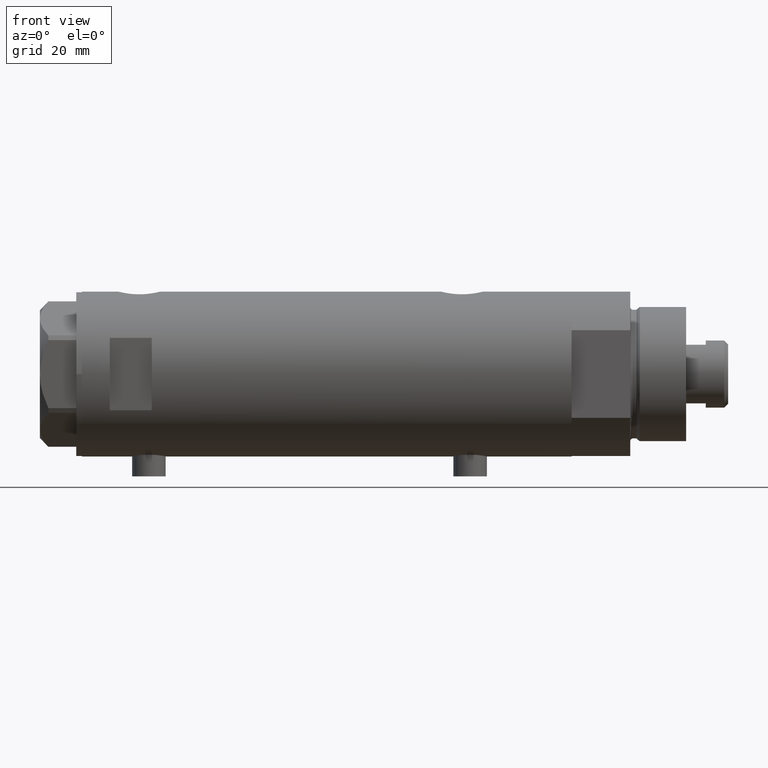
[diagram: clean part render]
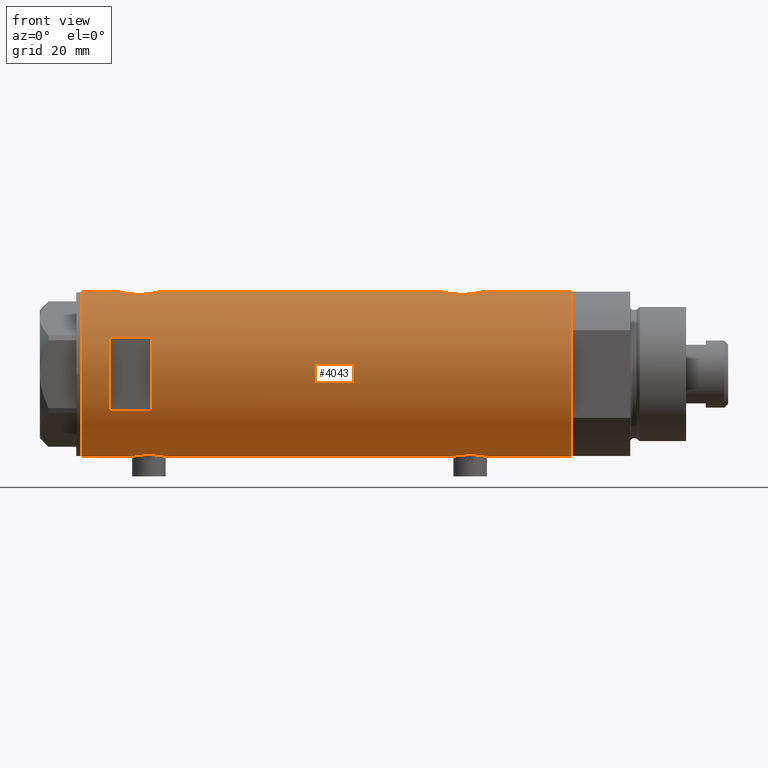
[diagram: same view with one face highlighted and labeled with its STEP entity id]
A machine part, front view. The second image highlights one B-rep face of the part: STEP entity #4043.
In plain terms, the highlighted cylindrical surface (partial cylindrical patch) has radius 29.5 mm, axis along (-1, -0, 0).
Its self-contained STEP definition (entity closure, byte-faithful):
#19 = CIRCLE ( 'NONE', #3126, 29.50000000000000355 ) ;
#26 = AXIS2_PLACEMENT_3D ( 'NONE', #1245, #1174, #4306 ) ;
#30 = CARTESIAN_POINT ( 'NONE',  ( 0.000000000000000000, 0.000000000000000000, 87.59999999999999432 ) ) ;
#32 = CARTESIAN_POINT ( 'NONE',  ( 28.86290657878784671, -6.099358034152101204, 62.72869329957394058 ) ) ;
#53 = EDGE_CURVE ( 'NONE', #2247, #709, #563, .T. ) ;
#55 = CARTESIAN_POINT ( 'NONE',  ( 29.33743940633121028, -3.100990836771690073, -41.56672487560935281 ) ) ;
#61 = CARTESIAN_POINT ( 'NONE',  ( -29.50000000000000355, -1.989795151372050188E-15, -45.04999999999999005 ) ) ;
#68 = ORIENTED_EDGE ( 'NONE', *, *, #3432, .F. ) ;
#74 = CARTESIAN_POINT ( 'NONE',  ( 29.08168479815707386, -4.954011967599708299, 61.46372631484727833 ) ) ;
#81 = ORIENTED_EDGE ( 'NONE', *, *, #1940, .F. ) ;
#82 = CARTESIAN_POINT ( 'NONE',  ( 28.98816846638396072, -5.474212100855873508, -43.26747840116693311 ) ) ;
#102 = CARTESIAN_POINT ( 'NONE',  ( 29.49999999999999289, -0.4976091310423251812, 59.59999999999998721 ) ) ;
#124 = EDGE_CURVE ( 'NONE', #1846, #3932, #3699, .T. ) ;
#126 = CARTESIAN_POINT ( 'NONE',  ( 28.59337635119608123, -7.258007499531540674, 69.05216225651359707 ) ) ;
#169 = CARTESIAN_POINT ( 'NONE',  ( -29.08006251441182854, -4.961575945539730803, -47.49381497947474884 ) ) ;
#171 = VECTOR ( 'NONE', #1683, 1000.000000000000000 ) ;
#189 = CARTESIAN_POINT ( 'NONE',  ( -29.21108587560690495, -4.128853169727750405, -56.00967276909590709 ) ) ;
#196 = CARTESIAN_POINT ( 'NONE',  ( 29.40305664607911140, -2.432276947006147605, -55.51147801006586491 ) ) ;
#197 = ORIENTED_EDGE ( 'NONE', *, *, #3224, .F. ) ;
#207 = CARTESIAN_POINT ( 'NONE',  ( -29.38738983525001558, -2.582042051636497693, -56.99535171595380945 ) ) ;
#214 = CARTESIAN_POINT ( 'NONE',  ( 0.000000000000000000, 0.000000000000000000, 62.60000000000011511 ) ) ;
#223 = CARTESIAN_POINT ( 'NONE',  ( -29.45566469296798928, -1.628675872921093726, 69.63756032628675996 ) ) ;
#229 = CARTESIAN_POINT ( 'NONE',  ( -28.85437274499025406, -6.138402965889069307, -52.52756596705081904 ) ) ;
#246 = CARTESIAN_POINT ( 'NONE',  ( -28.89828397447510255, -5.929977241120604425, 65.61611952241995027 ) ) ;
#266 = CARTESIAN_POINT ( 'NONE',  ( -28.83260549167351527, -6.239494599049532297, 63.18384915698199933 ) ) ;
#289 = CARTESIAN_POINT ( 'NONE',  ( -29.05872136210575363, -5.084685578900223213, 67.24009991908759787 ) ) ;
#315 = CARTESIAN_POINT ( 'NONE',  ( -29.49152014567325253, -0.8152473631539829402, 57.38964705166666391 ) ) ;
#335 = CARTESIAN_POINT ( 'NONE',  ( 28.53399451186755442, -7.487442594623181513, -47.90102514498886421 ) ) ;
#374 = CARTESIAN_POINT ( 'NONE',  ( 29.50000000000000355, -8.867894669064240341E-21, 74.59999999999999432 ) ) ;
#417 = VERTEX_POINT ( 'NONE', #740 ) ;
#421 = CARTESIAN_POINT ( 'NONE',  ( 28.77541267587657003, -6.504036106227640168, 70.86628550135910132 ) ) ;
#428 = CARTESIAN_POINT ( 'NONE',  ( 29.26065241255352589, -3.756597382275444819, -41.90395565180811133 ) ) ;
#445 = CARTESIAN_POINT ( 'NONE',  ( 28.59279484545187344, -7.260293545345771982, 65.15593442015531878 ) ) ;
#455 = CARTESIAN_POINT ( 'NONE',  ( 29.26166309680877475, -3.765013078516705303, -54.90510232053061657 ) ) ;
#474 = CARTESIAN_POINT ( 'NONE',  ( 28.72151714661535848, -6.735173278284142917, 70.43640470570873902 ) ) ;
#483 = CARTESIAN_POINT ( 'NONE',  ( 29.31438578683259522, -3.335040812377227937, -55.13547276843772238 ) ) ;
#513 = CARTESIAN_POINT ( 'NONE',  ( -29.12379578281189296, -4.705261494361431041, -55.43387957720276660 ) ) ;
#537 = CARTESIAN_POINT ( 'NONE',  ( -29.25361239466581154, -3.820294933898107814, -46.33642010285959145 ) ) ;
#563 = LINE ( 'NONE', #2328, #2675 ) ;
#586 = CARTESIAN_POINT ( 'NONE',  ( -28.91427970886711307, -5.849862889315922132, -53.50993133128852008 ) ) ;
#601 = CARTESIAN_POINT ( 'NONE',  ( -29.45797511864983420, -1.625450914296658667, 57.55094872469953060 ) ) ;
#616 = ORIENTED_EDGE ( 'NONE', *, *, #4003, .F. ) ;
#623 = ORIENTED_EDGE ( 'NONE', *, *, #917, .F. ) ;
#626 = CARTESIAN_POINT ( 'NONE',  ( -28.96147498926091046, -5.613273026676365518, 60.82107301657418930 ) ) ;
#645 = CARTESIAN_POINT ( 'NONE',  ( -29.25427426731712544, -3.815048240656437439, 58.63259231846663511 ) ) ;
#663 = CARTESIAN_POINT ( 'NONE',  ( -29.41741605749265887, -2.213861184585002917, 69.44831174451371680 ) ) ;
#688 = CARTESIAN_POINT ( 'NONE',  ( 28.62986945670068550, -7.114680680403729696, -45.97606223993307850 ) ) ;
#709 = VERTEX_POINT ( 'NONE', #4451 ) ;
#720 = CARTESIAN_POINT ( 'NONE',  ( -29.50000000000000355, -1.989795151372050188E-15, -45.04999999999999005 ) ) ;
#733 = CARTESIAN_POINT ( 'NONE',  ( 28.86290657878785737, -6.099358034152089658, -52.77130670042607363 ) ) ;
#740 = CARTESIAN_POINT ( 'NONE',  ( -29.50000000000000355, 3.612708057484692393E-15, 87.59999999999999432 ) ) ;
#752 = CARTESIAN_POINT ( 'NONE',  ( 28.53399451186755087, -7.487442594623177961, 67.59897485501115000 ) ) ;
#763 = CARTESIAN_POINT ( 'NONE',  ( 28.55627543367308618, -7.402134446380870259, -47.16780349681763340 ) ) ;
#764 = VERTEX_POINT ( 'NONE', #2559 ) ;
#774 = ORIENTED_EDGE ( 'NONE', *, *, #4301, .F. ) ;
#781 = CARTESIAN_POINT ( 'NONE',  ( 29.26065241255351523, -3.756597382275435493, 73.59604434819190999 ) ) ;
#784 = VERTEX_POINT ( 'NONE', #2585 ) ;
#801 = CARTESIAN_POINT ( 'NONE',  ( 28.54347630091234933, -7.451827970232792531, 66.11943218216043761 ) ) ;
#825 = CARTESIAN_POINT ( 'NONE',  ( 29.23250901027695647, -3.968959760999262176, 73.46846017287660402 ) ) ;
#870 = CARTESIAN_POINT ( 'NONE',  ( -29.50000000000000355, -3.685106651658548747E-16, 69.84999999999999432 ) ) ;
#871 = CARTESIAN_POINT ( 'NONE',  ( -29.25427426731712188, -3.815048240656438772, -56.26740768153337058 ) ) ;
#888 = CARTESIAN_POINT ( 'NONE',  ( -28.83909499632370199, -6.209928350489668958, -50.48382218917042508 ) ) ;
#908 = CARTESIAN_POINT ( 'NONE',  ( -29.07948744859177381, -4.968520850090770935, -55.11336367378893186 ) ) ;
#914 = ORIENTED_EDGE ( 'NONE', *, *, #2947, .F. ) ;
#917 = EDGE_CURVE ( 'NONE', #3679, #417, #3800, .T. ) ;
#932 = CARTESIAN_POINT ( 'NONE',  ( -29.05872136210574297, -5.084685578900233871, -47.65990008091242203 ) ) ;
#944 = ORIENTED_EDGE ( 'NONE', *, *, #3361, .F. ) ;
#947 = CARTESIAN_POINT ( 'NONE',  ( -29.50000000000000355, 3.612706708236066082E-15, 57.34999999999998721 ) ) ;
#952 = CARTESIAN_POINT ( 'NONE',  ( -28.83260549167351527, -6.239494599049535850, -51.71615084301800636 ) ) ;
#964 = CARTESIAN_POINT ( 'NONE',  ( -29.21016169868140366, -4.135295259288787051, 68.30390088086507205 ) ) ;
#1028 = CARTESIAN_POINT ( 'NONE',  ( -28.83909499632370199, -6.209928350489659188, 64.41617781082960903 ) ) ;
#1035 = CARTESIAN_POINT ( 'NONE',  ( 29.50000000000000355, -8.867894669064240341E-21, -40.89999999999999858 ) ) ;
#1045 = DIRECTION ( 'NONE',  ( -0.000000000000000000, -0.000000000000000000, -1.000000000000000000 ) ) ;
#1052 = CARTESIAN_POINT ( 'NONE',  ( 28.59279484545186989, -7.260293545345763100, -50.34406557984473096 ) ) ;
#1067 = CARTESIAN_POINT ( 'NONE',  ( 28.98816846638396427, -5.474212100855878838, 72.23252159883305978 ) ) ;
#1090 = EDGE_CURVE ( 'NONE', #3493, #764, #2997, .T. ) ;
#1094 = CARTESIAN_POINT ( 'NONE',  ( 29.23250901027695647, -3.968959760999266617, -42.03153982712338177 ) ) ;
#1111 = CARTESIAN_POINT ( 'NONE',  ( 28.72051071455672044, -6.739402597165490505, 63.77281026296248712 ) ) ;
#1115 = DIRECTION ( 'NONE',  ( 1.000000000000000000, 0.000000000000000000, 0.000000000000000000 ) ) ;
#1118 = CARTESIAN_POINT ( 'NONE',  ( 28.62983003203746080, -7.114781472982439681, -50.82273058853737524 ) ) ;
#1133 = EDGE_CURVE ( 'NONE', #417, #764, #1554, .T. ) ;
#1153 = CARTESIAN_POINT ( 'NONE',  ( 29.50000000000001066, -0.4905639552620957300, 74.59999999999998010 ) ) ;
#1174 = DIRECTION ( 'NONE',  ( 0.000000000000000000, 0.000000000000000000, 1.000000000000000000 ) ) ;
#1245 = CARTESIAN_POINT ( 'NONE',  ( 0.000000000000000000, 0.000000000000000000, -87.59999999999999432 ) ) ;
#1261 = VECTOR ( 'NONE', #3569, 1000.000000000000000 ) ;
#1271 = CARTESIAN_POINT ( 'NONE',  ( -28.89828397447510255, -5.929977241120610643, -49.28388047758001989 ) ) ;
#1280 = DIRECTION ( 'NONE',  ( -0.000000000000000000, -4.625929269271487689E-15, 1.000000000000000000 ) ) ;
#1296 = CARTESIAN_POINT ( 'NONE',  ( 29.50000000000000355, 0.000000000000000000, -87.59999999999999432 ) ) ;
#1304 = CARTESIAN_POINT ( 'NONE',  ( -28.99772237063718094, -5.425436006677728074, 66.72962674552641715 ) ) ;
#1310 = CARTESIAN_POINT ( 'NONE',  ( -29.49128673965872238, -0.8227026017531590130, -45.09075558927904126 ) ) ;
#1315 = DIRECTION ( 'NONE',  ( 0.000000000000000000, 0.000000000000000000, 1.000000000000000000 ) ) ;
#1334 = B_SPLINE_CURVE_WITH_KNOTS ( 'NONE', 3,
 ( #374, #1153, #3873, #2149, #1454, #1812, #3132, #781, #825, #2532, #2818, #1067, #3225, #3857, #2514, #421, #474, #3892, #126, #1796, #3462, #752, #4152, #4193, #801, #445, #1508, #1111, #3510, #32, #3169, #1837, #3533, #2173, #74, #4220, #1436, #3200, #2449, #3810, #2867, #2795, #102, #4240 ),
 .UNSPECIFIED., .F., .F.,
 ( 4, 2, 2, 2, 2, 2, 2, 2, 2, 2, 2, 2, 2, 2, 2, 2, 2, 2, 2, 2, 2, 4 ),
 ( 0.02354540741801906811, 0.02501659793198017859, 0.02648778844594128906, 0.02722338370292184256, 0.02795897895990239954, 0.02943016947386351001, 0.03016576473084408433, 0.03090135998782465171, 0.03237255050178579341, 0.03384374101574693511, 0.03457933627272750943, 0.03531493152970807681, 0.03678612204366921851, 0.03825731255763036021, 0.03972850307159149497, 0.04046409832857204847, 0.04119969358555261585, 0.04193528884253318323, 0.04267088409951375061, 0.04414207461347488537, 0.04561326512743602707, 0.04708445564139716183 ),
 .UNSPECIFIED. ) ;
#1351 = CARTESIAN_POINT ( 'NONE',  ( -29.46613381094001127, -1.427468570127964798, 69.68827540540398502 ) ) ;
#1401 = CARTESIAN_POINT ( 'NONE',  ( 0.000000000000000000, 0.000000000000000000, -87.59999999999999432 ) ) ;
#1436 = CARTESIAN_POINT ( 'NONE',  ( 29.17410189149616428, -4.377709617224024186, 61.00524172523977740 ) ) ;
#1439 = DIRECTION ( 'NONE',  ( -0.000000000000000000, 0.000000000000000000, -1.000000000000000000 ) ) ;
#1441 = CARTESIAN_POINT ( 'NONE',  ( 29.08168479815708451, -4.954011967599717181, -54.03627368515270035 ) ) ;
#1454 = CARTESIAN_POINT ( 'NONE',  ( 29.40378957563274298, -2.423455993307769951, 74.21449460115982788 ) ) ;
#1468 = VERTEX_POINT ( 'NONE', #1735 ) ;
#1487 = DIRECTION ( 'NONE',  ( 0.000000000000000000, 0.000000000000000000, 1.000000000000000000 ) ) ;
#1494 = LINE ( 'NONE', #1823, #4150 ) ;
#1508 = CARTESIAN_POINT ( 'NONE',  ( 28.62983003203746435, -7.114781472982441457, 64.67726941146263187 ) ) ;
#1523 = DIRECTION ( 'NONE',  ( 0.000000000000000000, 0.000000000000000000, 1.000000000000000000 ) ) ;
#1554 = CIRCLE ( 'NONE', #4413, 29.50000000000000355 ) ;
#1575 = CARTESIAN_POINT ( 'NONE',  ( -29.12311479234994849, -4.702282052053738504, -47.17776471113516124 ) ) ;
#1610 = CARTESIAN_POINT ( 'NONE',  ( -29.31475612970062627, -3.305202271067059883, -56.60847868843855224 ) ) ;
#1627 = CARTESIAN_POINT ( 'NONE',  ( -28.83028160285196151, -6.250189016175732526, 64.00967003214678641 ) ) ;
#1638 = CARTESIAN_POINT ( 'NONE',  ( -29.37136442049237317, -2.777615426151012201, -45.68634887377884013 ) ) ;
#1683 = DIRECTION ( 'NONE',  ( 0.000000000000000000, 0.000000000000000000, 1.000000000000000000 ) ) ;
#1691 = CARTESIAN_POINT ( 'NONE',  ( -29.25361239466581154, -3.820294933898098488, 68.56357989714038581 ) ) ;
#1707 = EDGE_LOOP ( 'NONE', ( #944, #4392, #914, #616 ) ) ;
#1719 = CARTESIAN_POINT ( 'NONE',  ( -29.21108587560690495, -4.128853169727751293, 58.89032723090409149 ) ) ;
#1735 = CARTESIAN_POINT ( 'NONE',  ( 12.96148139681573319, -26.49999999999998934, 62.59999999999998721 ) ) ;
#1737 = CARTESIAN_POINT ( 'NONE',  ( 28.77541267587658780, -6.504036106227640168, -44.63371449864085605 ) ) ;
#1743 = CARTESIAN_POINT ( 'NONE',  ( -29.45566469296797507, -1.628675872921105938, -45.26243967371323862 ) ) ;
#1745 = CARTESIAN_POINT ( 'NONE',  ( 29.50000000000000355, 0.000000000000000000, -87.59999999999999432 ) ) ;
#1750 = ORIENTED_EDGE ( 'NONE', *, *, #4210, .F. ) ;
#1763 = DIRECTION ( 'NONE',  ( 0.000000000000000000, 0.000000000000000000, 1.000000000000000000 ) ) ;
#1783 = CARTESIAN_POINT ( 'NONE',  ( 28.54347630091233867, -7.451827970232786313, -49.38056781783959792 ) ) ;
#1796 = CARTESIAN_POINT ( 'NONE',  ( 28.55627543367308618, -7.402134446380869370, 68.33219650318235949 ) ) ;
#1801 = CARTESIAN_POINT ( 'NONE',  ( 29.43922820968270671, -1.954457150219038208, -41.14210652754225350 ) ) ;
#1812 = CARTESIAN_POINT ( 'NONE',  ( 29.33743940633120673, -3.100990836771692294, 73.93327512439066140 ) ) ;
#1819 = EDGE_CURVE ( 'NONE', #2840, #2095, #4394, .T. ) ;
#1823 = CARTESIAN_POINT ( 'NONE',  ( 12.96148139681573319, -26.49999999999999645, -87.59999999999999432 ) ) ;
#1837 = CARTESIAN_POINT ( 'NONE',  ( 28.95592074821773210, -5.641779806288288235, 62.15226504197970314 ) ) ;
#1846 = VERTEX_POINT ( 'NONE', #2378 ) ;
#1882 = CARTESIAN_POINT ( 'NONE',  ( -12.96148139681573319, -26.49999999999998934, 62.59999999999998721 ) ) ;
#1889 = CARTESIAN_POINT ( 'NONE',  ( 29.50000000000000355, -1.363453657738827866E-15, -55.89999999999999858 ) ) ;
#1898 = CARTESIAN_POINT ( 'NONE',  ( -28.84137202824161861, -6.198846007008993908, -52.12388261123874145 ) ) ;
#1899 = ORIENTED_EDGE ( 'NONE', *, *, #4267, .T. ) ;
#1940 = EDGE_CURVE ( 'NONE', #3493, #3846, #1334, .T. ) ;
#1961 = CARTESIAN_POINT ( 'NONE',  ( -29.33479068874800433, -3.136645782783870295, -45.87844745385529421 ) ) ;
#1977 = CARTESIAN_POINT ( 'NONE',  ( -29.50000000000000000, -0.4141077724969871032, 69.85000000000000853 ) ) ;
#2017 = CARTESIAN_POINT ( 'NONE',  ( -29.07948744859177026, -4.968520850090769159, 59.78663632621105961 ) ) ;
#2063 = CARTESIAN_POINT ( 'NONE',  ( 28.59337635119608123, -7.258007499531542450, -46.44783774348638872 ) ) ;
#2074 = DIRECTION ( 'NONE',  ( 1.000000000000000000, 0.000000000000000000, 0.000000000000000000 ) ) ;
#2083 = CARTESIAN_POINT ( 'NONE',  ( -29.50000000000000355, 3.612708057484692393E-15, -87.59999999999999432 ) ) ;
#2095 = VERTEX_POINT ( 'NONE', #1882 ) ;
#2105 = CARTESIAN_POINT ( 'NONE',  ( 28.89374847711160399, -5.952001739005051917, -52.96983981079635129 ) ) ;
#2130 = LINE ( 'NONE', #3498, #3649 ) ;
#2149 = CARTESIAN_POINT ( 'NONE',  ( 29.43922820968270671, -1.954457150219034434, 74.35789347245773229 ) ) ;
#2169 = CARTESIAN_POINT ( 'NONE',  ( -29.50000000000000355, 3.612708057484692393E-15, -87.59999999999999432 ) ) ;
#2173 = CARTESIAN_POINT ( 'NONE',  ( 29.05028789344172324, -5.134328181356783816, 61.62753542393731010 ) ) ;
#2232 = CARTESIAN_POINT ( 'NONE',  ( 29.43916859571211120, -1.954329820671499407, -55.65764479242087504 ) ) ;
#2233 = VERTEX_POINT ( 'NONE', #4187 ) ;
#2242 = DIRECTION ( 'NONE',  ( 0.000000000000000000, 0.000000000000000000, 1.000000000000000000 ) ) ;
#2247 = VERTEX_POINT ( 'NONE', #1745 ) ;
#2272 = VECTOR ( 'NONE', #1045, 1000.000000000000000 ) ;
#2286 = CARTESIAN_POINT ( 'NONE',  ( -28.89999183068148625, -5.919812056825922042, -53.31500238835418060 ) ) ;
#2288 = AXIS2_PLACEMENT_3D ( 'NONE', #1401, #3163, #4275 ) ;
#2320 = CARTESIAN_POINT ( 'NONE',  ( -29.33479068874799722, -3.136645782783865410, 69.02155254614469015 ) ) ;
#2328 = CARTESIAN_POINT ( 'NONE',  ( 29.50000000000000355, 0.000000000000000000, -87.59999999999999432 ) ) ;
#2341 = CARTESIAN_POINT ( 'NONE',  ( -29.33428005013169226, -3.127775714777723426, 58.18506796127407199 ) ) ;
#2352 = CIRCLE ( 'NONE', #26, 29.50000000000000355 ) ;
#2378 = CARTESIAN_POINT ( 'NONE',  ( -29.50000000000000355, 3.612706708267620518E-15, -57.55000000000000426 ) ) ;
#2407 = CARTESIAN_POINT ( 'NONE',  ( -28.99856997507319534, -5.420860550814439627, 60.46276987854197671 ) ) ;
#2433 = CARTESIAN_POINT ( 'NONE',  ( 29.48775985681159284, -0.9798361908152568578, -40.94769556118675524 ) ) ;
#2449 = CARTESIAN_POINT ( 'NONE',  ( 29.31438578683260232, -3.335040812377226604, 60.36452723156224920 ) ) ;
#2454 = CARTESIAN_POINT ( 'NONE',  ( 29.14531914445117522, -4.579221598645967006, -42.44009767007190703 ) ) ;
#2473 = CARTESIAN_POINT ( 'NONE',  ( 29.05028789344173745, -5.134328181356786480, -53.87246457606267569 ) ) ;
#2514 = CARTESIAN_POINT ( 'NONE',  ( 28.86327882047615034, -6.097569254709694242, 71.47367090911446041 ) ) ;
#2532 = CARTESIAN_POINT ( 'NONE',  ( 29.14531914445117167, -4.579221598645962565, 73.05990232992806455 ) ) ;
#2559 = CARTESIAN_POINT ( 'NONE',  ( 29.50000000000000355, 0.000000000000000000, 87.59999999999999432 ) ) ;
#2585 = CARTESIAN_POINT ( 'NONE',  ( -29.50000000000000355, 3.612706708236066082E-15, 57.34999999999998721 ) ) ;
#2597 = CARTESIAN_POINT ( 'NONE',  ( -29.50000000000000711, -0.4084468586314279337, -57.55000000000000426 ) ) ;
#2614 = CARTESIAN_POINT ( 'NONE',  ( -29.49152014567325253, -0.8152473631539818300, -57.51035294833331335 ) ) ;
#2640 = CARTESIAN_POINT ( 'NONE',  ( -28.96072448608914485, -5.617106371651703789, -48.52917268339558632 ) ) ;
#2641 = VERTEX_POINT ( 'NONE', #1035 ) ;
#2648 = DIRECTION ( 'NONE',  ( 1.776356839400250267E-15, 1.000000000000000000, 4.704334850106595203E-15 ) ) ;
#2651 = CARTESIAN_POINT ( 'NONE',  ( -29.12379578281188586, -4.705261494361431041, 59.46612042279722488 ) ) ;
#2675 = VECTOR ( 'NONE', #2242, 1000.000000000000000 ) ;
#2689 = CARTESIAN_POINT ( 'NONE',  ( -28.89999183068147559, -5.919812056825914048, 61.58499761164581798 ) ) ;
#2711 = CARTESIAN_POINT ( 'NONE',  ( -29.50000000000000355, -3.685106651658548747E-16, 69.84999999999999432 ) ) ;
#2728 = CARTESIAN_POINT ( 'NONE',  ( -29.31475612970062983, -3.305202271067059439, 58.29152131156144634 ) ) ;
#2734 = CARTESIAN_POINT ( 'NONE',  ( -29.50000000000000711, -0.4141077724969866591, -45.04999999999999005 ) ) ;
#2753 = CARTESIAN_POINT ( 'NONE',  ( 28.86327882047615034, -6.097569254709688913, -44.02632909088551827 ) ) ;
#2768 = VECTOR ( 'NONE', #1523, 1000.000000000000000 ) ;
#2780 = CARTESIAN_POINT ( 'NONE',  ( 29.50000000000000355, -8.867894669064240341E-21, -40.89999999999999858 ) ) ;
#2795 = CARTESIAN_POINT ( 'NONE',  ( 29.48742104091791560, -0.9879539515379935910, 59.64904301646021167 ) ) ;
#2800 = CARTESIAN_POINT ( 'NONE',  ( 29.14351131874355261, -4.576283785862462317, -54.34705324848517449 ) ) ;
#2814 = ORIENTED_EDGE ( 'NONE', *, *, #1133, .F. ) ;
#2818 = CARTESIAN_POINT ( 'NONE',  ( 29.08294968506023181, -4.955368226349210481, 72.75096718198464885 ) ) ;
#2824 = CARTESIAN_POINT ( 'NONE',  ( 28.89374408016308848, -5.952042782108791563, -43.83015462974033483 ) ) ;
#2840 = VERTEX_POINT ( 'NONE', #3908 ) ;
#2867 = CARTESIAN_POINT ( 'NONE',  ( 29.43916859571210409, -1.954329820671502960, 59.84235520757910365 ) ) ;
#2884 = CARTESIAN_POINT ( 'NONE',  ( 29.50000000000000355, -8.867894669064240341E-21, 74.59999999999999432 ) ) ;
#2904 = VECTOR ( 'NONE', #1315, 1000.000000000000000 ) ;
#2932 = CARTESIAN_POINT ( 'NONE',  ( -28.99856997507319534, -5.420860550814444956, -54.43723012145802187 ) ) ;
#2940 = CARTESIAN_POINT ( 'NONE',  ( 29.50000000000000711, -0.4976091310423220726, -55.89999999999999858 ) ) ;
#2947 = EDGE_CURVE ( 'NONE', #2233, #2840, #19, .T. ) ;
#2970 = CARTESIAN_POINT ( 'NONE',  ( -28.87288655002252113, -6.050870399762851015, -49.68249459278194990 ) ) ;
#2990 = CARTESIAN_POINT ( 'NONE',  ( -29.37055817176825556, -2.766456155496577196, -56.90813607588912504 ) ) ;
#2997 = LINE ( 'NONE', #1296, #2904 ) ;
#2999 = ORIENTED_EDGE ( 'NONE', *, *, #3640, .T. ) ;
#3025 = B_SPLINE_CURVE_WITH_KNOTS ( 'NONE', 3,
 ( #947, #3733, #315, #601, #3073, #4383, #3366, #2341, #2728, #645, #1719, #2651, #2017, #2407, #626, #4364, #2689, #3345, #3026, #3751, #266, #4450, #1627, #1028, #4066, #246, #3384, #1304, #289, #4042, #4027, #3318, #964, #1691, #2320, #4429, #663, #3049, #223, #1351, #3689, #1977, #2711 ),
 .UNSPECIFIED., .F., .F.,
 ( 4, 2, 2, 2, 2, 2, 2, 2, 2, 1, 2, 2, 2, 2, 2, 2, 2, 2, 2, 2, 2, 4 ),
 ( 0.01959598605283711936, 0.02082041500883364399, 0.02204484396483016861, 0.02265705844282843093, 0.02326927292082668977, 0.02449370187682321787, 0.02571813083281974943, 0.02694255978881627753, 0.02755477426681453290, 0.02816698874481278828, 0.02877920322281106447, 0.02939141770080933719, 0.03061584665680588957, 0.03184027561280244195, 0.03306470456879899433, 0.03367691904679727399, 0.03428913352479554671, 0.03551356248079207134, 0.03673799143678858903, 0.03735020591478684787, 0.03796242039278510672, 0.03918684934878163828 ),
 .UNSPECIFIED. ) ;
#3026 = CARTESIAN_POINT ( 'NONE',  ( -28.85437274499025762, -6.138402965889063978, 62.37243403294917954 ) ) ;
#3049 = CARTESIAN_POINT ( 'NONE',  ( -29.43130053621386111, -2.021711243143687664, 69.51755045960182144 ) ) ;
#3057 = CARTESIAN_POINT ( 'NONE',  ( -29.43130053621386111, -2.021711243143700543, -45.38244954039817003 ) ) ;
#3073 = CARTESIAN_POINT ( 'NONE',  ( -29.43333839972900634, -2.017691896334577351, 57.67064010952157105 ) ) ;
#3090 = CARTESIAN_POINT ( 'NONE',  ( 29.40378957563275009, -2.423455993307766398, -41.28550539884014370 ) ) ;
#3095 = FACE_OUTER_BOUND ( 'NONE', #3524, .T. ) ;
#3126 = AXIS2_PLACEMENT_3D ( 'NONE', #4134, #1439, #1115 ) ;
#3128 = DIRECTION ( 'NONE',  ( 0.000000000000000000, 0.000000000000000000, 1.000000000000000000 ) ) ;
#3132 = CARTESIAN_POINT ( 'NONE',  ( 29.31311917412636348, -3.322476152549144413, 73.82842985264291258 ) ) ;
#3139 = CARTESIAN_POINT ( 'NONE',  ( 28.98740664105171305, -5.478212189394655596, -53.52819516185792281 ) ) ;
#3149 = ORIENTED_EDGE ( 'NONE', *, *, #53, .T. ) ;
#3163 = DIRECTION ( 'NONE',  ( 0.000000000000000000, 0.000000000000000000, 1.000000000000000000 ) ) ;
#3169 = CARTESIAN_POINT ( 'NONE',  ( 28.89374847711160754, -5.952001739005052805, 62.53016018920364161 ) ) ;
#3177 = CARTESIAN_POINT ( 'NONE',  ( 28.72151714661536204, -6.735173278284145582, -45.06359529429126098 ) ) ;
#3200 = CARTESIAN_POINT ( 'NONE',  ( 29.26166309680877475, -3.765013078516707967, 60.59489767946936212 ) ) ;
#3224 = EDGE_CURVE ( 'NONE', #3932, #784, #3955, .T. ) ;
#3225 = CARTESIAN_POINT ( 'NONE',  ( 28.95619957017310853, -5.640369376407880608, 72.04939726490175644 ) ) ;
#3264 = CARTESIAN_POINT ( 'NONE',  ( -28.99772237063718094, -5.425436006677739620, -48.17037325447357432 ) ) ;
#3276 = CIRCLE ( 'NONE', #4213, 29.50000000000000355 ) ;
#3289 = CARTESIAN_POINT ( 'NONE',  ( -29.45797511864983420, -1.625450914296657334, -57.34905127530046087 ) ) ;
#3312 = CARTESIAN_POINT ( 'NONE',  ( -29.50000000000000355, 3.612708057484692393E-15, -87.59999999999999432 ) ) ;
#3318 = CARTESIAN_POINT ( 'NONE',  ( -29.14490888978862770, -4.565669626908225531, 67.87298179876214022 ) ) ;
#3329 = CARTESIAN_POINT ( 'NONE',  ( -28.87532468301956357, -6.038983942005355487, -52.92329367688535768 ) ) ;
#3345 = CARTESIAN_POINT ( 'NONE',  ( -28.87532468301956712, -6.038983942005351047, 61.97670632311463379 ) ) ;
#3361 = EDGE_CURVE ( 'NONE', #2095, #1468, #3276, .T. ) ;
#3366 = CARTESIAN_POINT ( 'NONE',  ( -29.37055817176824490, -2.766456155496578084, 57.99186392411088775 ) ) ;
#3384 = CARTESIAN_POINT ( 'NONE',  ( -28.96072448608914840, -5.617106371651694907, 66.37082731660440515 ) ) ;
#3388 = CARTESIAN_POINT ( 'NONE',  ( 29.50000000000000355, -2.136503572369537054E-15, 59.59999999999999432 ) ) ;
#3389 = CARTESIAN_POINT ( 'NONE',  ( -29.46613381094001483, -1.427468570127977010, -45.21172459459599935 ) ) ;
#3419 = ORIENTED_EDGE ( 'NONE', *, *, #1090, .T. ) ;
#3428 = CARTESIAN_POINT ( 'NONE',  ( 28.54678862679669038, -7.438514536388029619, -47.41041725679210828 ) ) ;
#3432 = EDGE_CURVE ( 'NONE', #3555, #1846, #4130, .T. ) ;
#3462 = CARTESIAN_POINT ( 'NONE',  ( 28.54678862679669749, -7.438514536388028731, 68.08958274320792725 ) ) ;
#3468 = CARTESIAN_POINT ( 'NONE',  ( 28.95592074821772854, -5.641779806288289123, -53.34773495802030396 ) ) ;
#3476 = CYLINDRICAL_SURFACE ( 'NONE', #2288, 29.50000000000000355 ) ;
#3493 = VERTEX_POINT ( 'NONE', #2884 ) ;
#3498 = CARTESIAN_POINT ( 'NONE',  ( 29.50000000000000355, 0.000000000000000000, -87.59999999999999432 ) ) ;
#3510 = CARTESIAN_POINT ( 'NONE',  ( 28.77424839213764329, -6.509286280845849149, 63.34218748394043530 ) ) ;
#3520 = CARTESIAN_POINT ( 'NONE',  ( 29.31311917412636348, -3.322476152549152406, -41.67157014735705189 ) ) ;
#3524 = EDGE_LOOP ( 'NONE', ( #68, #2999, #3149, #774, #1899, #81, #3419, #2814, #623, #1750, #197, #4035 ) ) ;
#3533 = CARTESIAN_POINT ( 'NONE',  ( 28.98740664105171660, -5.478212189394656484, 61.97180483814205587 ) ) ;
#3555 = VERTEX_POINT ( 'NONE', #3769 ) ;
#3569 = DIRECTION ( 'NONE',  ( 0.000000000000000000, 0.000000000000000000, 1.000000000000000000 ) ) ;
#3605 = CARTESIAN_POINT ( 'NONE',  ( -29.33428005013168871, -3.127775714777722982, -56.71493203872592659 ) ) ;
#3626 = B_SPLINE_CURVE_WITH_KNOTS ( 'NONE', 3,
 ( #2780, #4162, #2433, #1801, #3090, #55, #3520, #428, #1094, #2454, #3840, #82, #4228, #2824, #2753, #1737, #3177, #688, #2063, #763, #3428, #335, #3985, #4136, #1783, #1052, #1118, #3798, #3816, #733, #2105, #3468, #3139, #2473, #1441, #2800, #3642, #455, #483, #196, #2232, #4332, #2940, #1889 ),
 .UNSPECIFIED., .F., .F.,
 ( 4, 2, 2, 2, 2, 2, 2, 2, 2, 2, 2, 2, 2, 2, 2, 2, 2, 2, 2, 2, 2, 4 ),
 ( 0.02354540741801906811, 0.02501659793198015777, 0.02648778844594124743, 0.02722338370292179052, 0.02795897895990233362, 0.02943016947386341287, 0.03016576473084396290, 0.03090135998782451293, 0.03237255050178562688, 0.03384374101574673388, 0.03457933627272730126, 0.03531493152970786864, 0.03678612204366901728, 0.03825731255763017286, 0.03972850307159132843, 0.04046409832857190969, 0.04119969358555249095, 0.04193528884253308608, 0.04267088409951366734, 0.04414207461347482986, 0.04561326512743600625, 0.04708445564139716877 ),
 .UNSPECIFIED. ) ;
#3631 = CARTESIAN_POINT ( 'NONE',  ( -29.21016169868139656, -4.135295259288792380, -46.59609911913489810 ) ) ;
#3640 = EDGE_CURVE ( 'NONE', #3555, #2247, #2352, .T. ) ;
#3642 = CARTESIAN_POINT ( 'NONE',  ( 29.17410189149616428, -4.377709617224021521, -54.49475827476019418 ) ) ;
#3649 = VECTOR ( 'NONE', #1487, 1000.000000000000000 ) ;
#3654 = CARTESIAN_POINT ( 'NONE',  ( -28.83028160285195440, -6.250189016175739631, -50.89032996785321927 ) ) ;
#3674 = CARTESIAN_POINT ( 'NONE',  ( -29.14490888978862415, -4.565669626908229084, -47.02701820123782994 ) ) ;
#3679 = VERTEX_POINT ( 'NONE', #870 ) ;
#3689 = CARTESIAN_POINT ( 'NONE',  ( -29.49128673965871172, -0.8227026017531454682, 69.80924441072093600 ) ) ;
#3699 = B_SPLINE_CURVE_WITH_KNOTS ( 'NONE', 3,
 ( #4032, #2597, #2614, #3289, #3946, #207, #2990, #3605, #1610, #871, #189, #513, #908, #2932, #3989, #586, #2286, #3329, #229, #1898, #952, #3966, #3654, #888, #2970, #1271, #2640, #3264, #932, #169, #1575, #3674, #3631, #537, #1961, #1638, #4411, #3057, #1743, #3389, #1310, #2734, #720 ),
 .UNSPECIFIED., .F., .F.,
 ( 4, 2, 2, 2, 2, 2, 2, 2, 2, 1, 2, 2, 2, 2, 2, 2, 2, 2, 2, 2, 2, 4 ),
 ( 0.01959598605283713324, 0.02082041500883365093, 0.02204484396483016515, 0.02265705844282842399, 0.02326927292082667936, 0.02449370187682318317, 0.02571813083281968698, 0.02694255978881619079, 0.02755477426681445310, 0.02816698874481271542, 0.02877920322281097426, 0.02939141770080923657, 0.03061584665680577855, 0.03184027561280232399, 0.03306470456879886943, 0.03367691904679714215, 0.03428913352479541488, 0.03551356248079197420, 0.03673799143678854046, 0.03735020591478682705, 0.03796242039278510672, 0.03918684934878167297 ),
 .UNSPECIFIED. ) ;
#3733 = CARTESIAN_POINT ( 'NONE',  ( -29.50000000000000711, -0.4084468586314314309, 57.35000000000000142 ) ) ;
#3751 = CARTESIAN_POINT ( 'NONE',  ( -28.84137202824161150, -6.198846007008987691, 62.77611738876123582 ) ) ;
#3769 = CARTESIAN_POINT ( 'NONE',  ( -29.50000000000000355, 3.612708057484692393E-15, -87.59999999999999432 ) ) ;
#3792 = CARTESIAN_POINT ( 'NONE',  ( -12.96148139681573319, -26.49999999999999645, -87.59999999999999432 ) ) ;
#3798 = CARTESIAN_POINT ( 'NONE',  ( 28.72051071455671334, -6.739402597165489617, -51.72718973703752710 ) ) ;
#3800 = LINE ( 'NONE', #2083, #1261 ) ;
#3810 = CARTESIAN_POINT ( 'NONE',  ( 29.40305664607911140, -2.432276947006145829, 59.98852198993411378 ) ) ;
#3816 = CARTESIAN_POINT ( 'NONE',  ( 28.77424839213763264, -6.509286280845835826, -52.15781251605955759 ) ) ;
#3840 = CARTESIAN_POINT ( 'NONE',  ( 29.08294968506023537, -4.955368226349206040, -42.74903281801533694 ) ) ;
#3846 = VERTEX_POINT ( 'NONE', #3388 ) ;
#3857 = CARTESIAN_POINT ( 'NONE',  ( 28.89374408016309914, -5.952042782108793340, 71.66984537025965096 ) ) ;
#3873 = CARTESIAN_POINT ( 'NONE',  ( 29.48775985681159284, -0.9798361908152555255, 74.55230443881325186 ) ) ;
#3892 = CARTESIAN_POINT ( 'NONE',  ( 28.62986945670069261, -7.114680680403731472, 69.52393776006691439 ) ) ;
#3908 = CARTESIAN_POINT ( 'NONE',  ( -12.96148139681573319, -26.49999999999998934, 77.60000000000002274 ) ) ;
#3932 = VERTEX_POINT ( 'NONE', #61 ) ;
#3946 = CARTESIAN_POINT ( 'NONE',  ( -29.43333839972900634, -2.017691896334575574, -57.22935989047839200 ) ) ;
#3955 = LINE ( 'NONE', #3312, #171 ) ;
#3966 = CARTESIAN_POINT ( 'NONE',  ( -28.83034328164761462, -6.249904501012249369, -51.50914539564058003 ) ) ;
#3985 = CARTESIAN_POINT ( 'NONE',  ( 28.53070445389874976, -7.499926890973428684, -48.15046579487084699 ) ) ;
#3989 = CARTESIAN_POINT ( 'NONE',  ( -28.96147498926092112, -5.613273026676372623, -54.07892698342580218 ) ) ;
#4003 = EDGE_CURVE ( 'NONE', #1468, #2233, #1494, .T. ) ;
#4027 = CARTESIAN_POINT ( 'NONE',  ( -29.12311479234994493, -4.702282052053730510, 67.72223528886479471 ) ) ;
#4032 = CARTESIAN_POINT ( 'NONE',  ( -29.50000000000000355, 3.612706708267620518E-15, -57.55000000000000426 ) ) ;
#4035 = ORIENTED_EDGE ( 'NONE', *, *, #124, .F. ) ;
#4042 = CARTESIAN_POINT ( 'NONE',  ( -29.08006251441183565, -4.961575945539723698, 67.40618502052524263 ) ) ;
#4043 = ADVANCED_FACE ( 'NONE', ( #3095, #4469 ), #3476, .T. ) ;
#4066 = CARTESIAN_POINT ( 'NONE',  ( -28.87288655002252113, -6.050870399762837692, 65.21750540721804157 ) ) ;
#4130 = LINE ( 'NONE', #2169, #2768 ) ;
#4134 = CARTESIAN_POINT ( 'NONE',  ( 0.000000000000000000, 0.000000000000000000, 77.60000000000002274 ) ) ;
#4136 = CARTESIAN_POINT ( 'NONE',  ( 28.53064705443910043, -7.500145243772282200, -48.89244703291117844 ) ) ;
#4150 = VECTOR ( 'NONE', #1763, 1000.000000000000000 ) ;
#4152 = CARTESIAN_POINT ( 'NONE',  ( 28.53070445389874621, -7.499926890973428684, 67.34953420512916011 ) ) ;
#4162 = CARTESIAN_POINT ( 'NONE',  ( 29.50000000000001066, -0.4905639552620955079, -40.89999999999999858 ) ) ;
#4187 = CARTESIAN_POINT ( 'NONE',  ( 12.96148139681573319, -26.49999999999998934, 77.60000000000002274 ) ) ;
#4193 = CARTESIAN_POINT ( 'NONE',  ( 28.53064705443911464, -7.500145243772284864, 66.60755296708883577 ) ) ;
#4210 = EDGE_CURVE ( 'NONE', #784, #3679, #3025, .T. ) ;
#4213 = AXIS2_PLACEMENT_3D ( 'NONE', #214, #1280, #2648 ) ;
#4220 = CARTESIAN_POINT ( 'NONE',  ( 29.14351131874355971, -4.576283785862454323, 61.15294675151478287 ) ) ;
#4228 = CARTESIAN_POINT ( 'NONE',  ( 28.95619957017310497, -5.640369376407877056, -43.45060273509821513 ) ) ;
#4240 = CARTESIAN_POINT ( 'NONE',  ( 29.50000000000000355, -2.136503572369537054E-15, 59.59999999999999432 ) ) ;
#4267 = EDGE_CURVE ( 'NONE', #2641, #3846, #2130, .T. ) ;
#4275 = DIRECTION ( 'NONE',  ( 1.000000000000000000, 0.000000000000000000, 0.000000000000000000 ) ) ;
#4301 = EDGE_CURVE ( 'NONE', #2641, #709, #3626, .T. ) ;
#4306 = DIRECTION ( 'NONE',  ( 1.000000000000000000, 0.000000000000000000, 0.000000000000000000 ) ) ;
#4332 = CARTESIAN_POINT ( 'NONE',  ( 29.48742104091792982, -0.9879539515379943682, -55.85095698353980964 ) ) ;
#4364 = CARTESIAN_POINT ( 'NONE',  ( -28.91427970886709886, -5.849862889315915915, 61.39006866871145718 ) ) ;
#4383 = CARTESIAN_POINT ( 'NONE',  ( -29.38738983525000137, -2.582042051636497693, 57.90464828404618913 ) ) ;
#4392 = ORIENTED_EDGE ( 'NONE', *, *, #1819, .F. ) ;
#4394 = LINE ( 'NONE', #3792, #2272 ) ;
#4411 = CARTESIAN_POINT ( 'NONE',  ( -29.41741605749266952, -2.213861184585005137, -45.45168825548628178 ) ) ;
#4413 = AXIS2_PLACEMENT_3D ( 'NONE', #30, #3128, #2074 ) ;
#4429 = CARTESIAN_POINT ( 'NONE',  ( -29.37136442049236962, -2.777615426151009981, 69.21365112622116555 ) ) ;
#4450 = CARTESIAN_POINT ( 'NONE',  ( -28.83034328164762528, -6.249904501012242264, 63.39085460435941854 ) ) ;
#4451 = CARTESIAN_POINT ( 'NONE',  ( 29.50000000000000355, -1.363453657738827866E-15, -55.89999999999999858 ) ) ;
#4469 = FACE_BOUND ( 'NONE', #1707, .T. ) ;